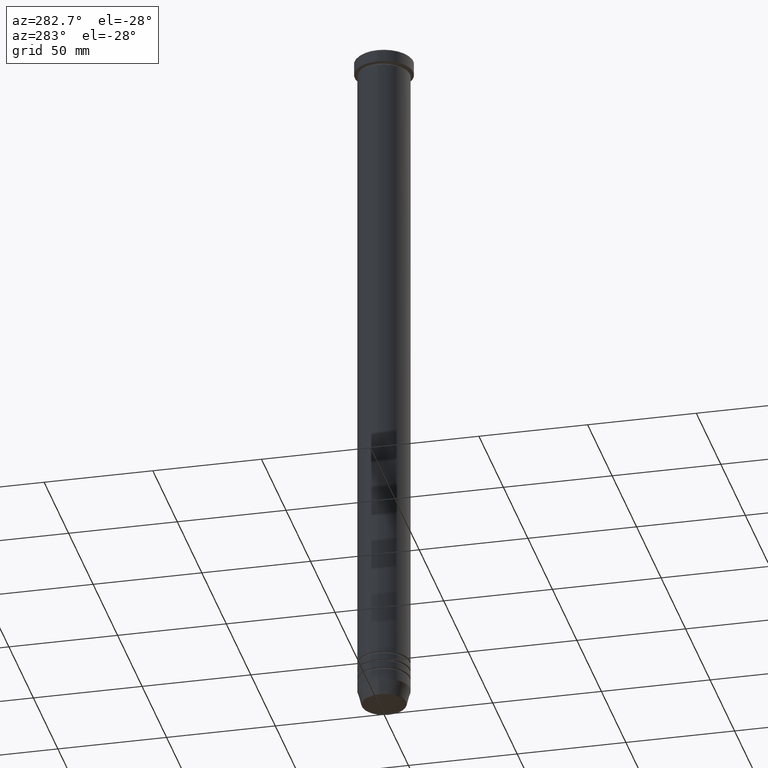
[diagram: clean part render]
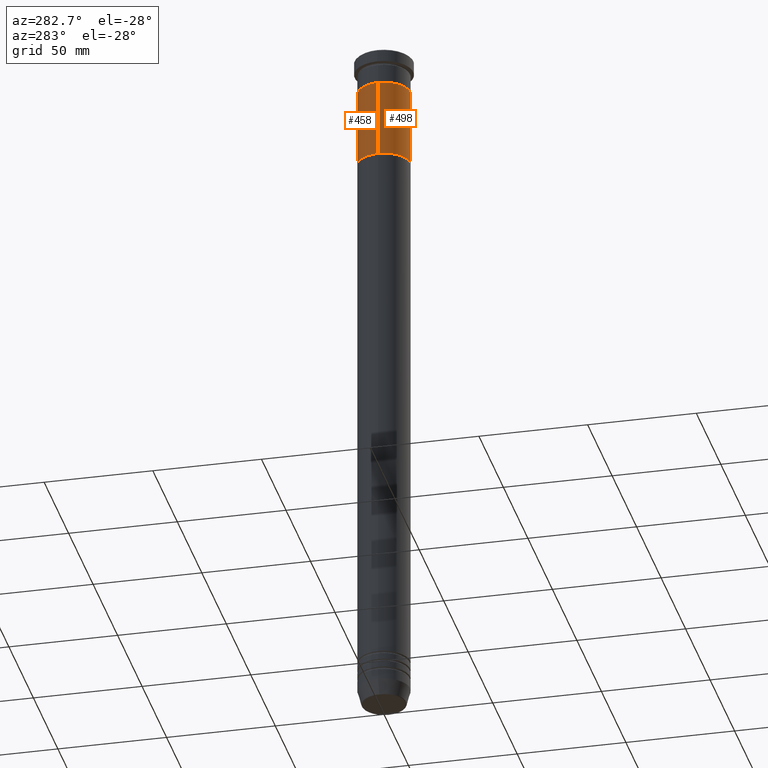
[diagram: same view with one multi-face feature highlighted, each face labeled with its STEP entity id]
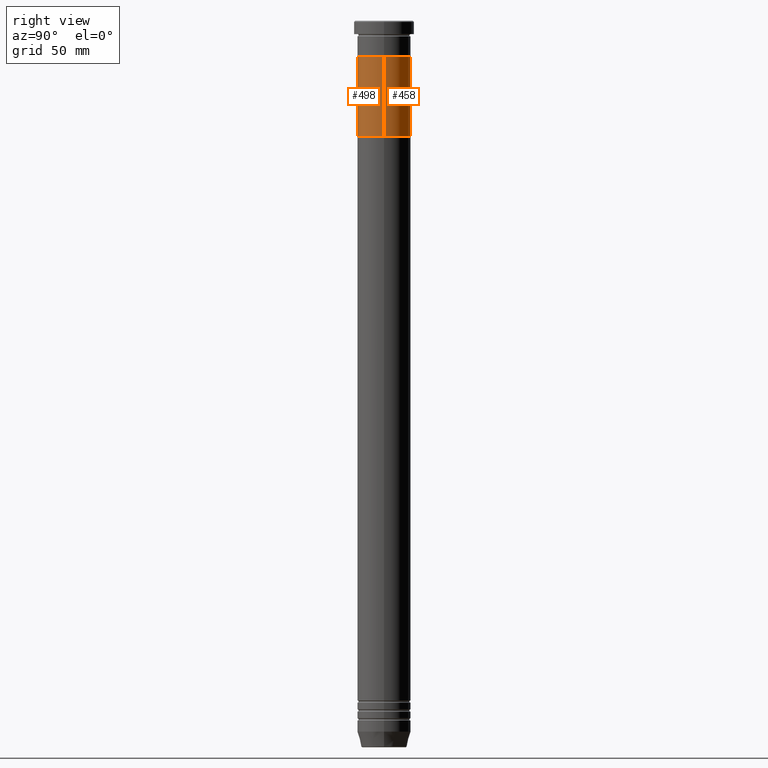
[diagram: same view with one multi-face feature highlighted, each face labeled with its STEP entity id]
A machine part, auxiliary view. The highlighted faces form ONE feature: a constant-radius fillet chain: 2 tangent blend faces with common blend radius 12 mm. The faces share edges in the B-rep.
A second angle (right view) of the same feature is appended — it is thin or edge-on in the first view.
Their STEP definitions:
[1] entity #498 (Cylinder):
#7 = CARTESIAN_POINT ( 'NONE',  ( -12.00000000000000178, 1.469576158976824144E-15, -52.00000000000000000 ) ) ;
#70 = EDGE_LOOP ( 'NONE', ( #624, #855, #788, #665 ) ) ;
#120 = DIRECTION ( 'NONE',  ( -0.000000000000000000, -0.000000000000000000, 1.000000000000000000 ) ) ;
#226 = CARTESIAN_POINT ( 'NONE',  ( -12.00000000000000178, 1.469576158976824144E-15, -52.00000000000000000 ) ) ;
#228 = VERTEX_POINT ( 'NONE', #7 ) ;
#235 = VERTEX_POINT ( 'NONE', #731 ) ;
#268 = VECTOR ( 'NONE', #674, 1000.000000000000000 ) ;
#317 = LINE ( 'NONE', #478, #268 ) ;
#332 = EDGE_CURVE ( 'NONE', #235, #1041, #795, .T. ) ;
#380 = DIRECTION ( 'NONE',  ( 0.000000000000000000, 0.000000000000000000, -1.000000000000000000 ) ) ;
#386 = EDGE_CURVE ( 'NONE', #431, #235, #317, .T. ) ;
#431 = VERTEX_POINT ( 'NONE', #667 ) ;
#450 = FACE_OUTER_BOUND ( 'NONE', #70, .T. ) ;
#478 = CARTESIAN_POINT ( 'NONE',  ( 12.00000000000000178, 0.000000000000000000, -52.00000000000000000 ) ) ;
#498 = ADVANCED_FACE ( 'NONE', ( #450 ), #1088, .T. ) ;
#547 = DIRECTION ( 'NONE',  ( 0.000000000000000000, 0.000000000000000000, -1.000000000000000000 ) ) ;
#590 = DIRECTION ( 'NONE',  ( -0.000000000000000000, -0.000000000000000000, 1.000000000000000000 ) ) ;
#624 = ORIENTED_EDGE ( 'NONE', *, *, #954, .F. ) ;
#644 = DIRECTION ( 'NONE',  ( -1.000000000000000000, 0.000000000000000000, 0.000000000000000000 ) ) ;
#657 = AXIS2_PLACEMENT_3D ( 'NONE', #1144, #120, #974 ) ;
#665 = ORIENTED_EDGE ( 'NONE', *, *, #332, .T. ) ;
#667 = CARTESIAN_POINT ( 'NONE',  ( 12.00000000000000178, 0.000000000000000000, -52.00000000000000000 ) ) ;
#669 = VECTOR ( 'NONE', #590, 1000.000000000000000 ) ;
#673 = LINE ( 'NONE', #226, #669 ) ;
#674 = DIRECTION ( 'NONE',  ( -0.000000000000000000, -0.000000000000000000, 1.000000000000000000 ) ) ;
#731 = CARTESIAN_POINT ( 'NONE',  ( 12.00000000000000178, 0.000000000000000000, -16.00000000000000000 ) ) ;
#738 = DIRECTION ( 'NONE',  ( -1.000000000000000000, 0.000000000000000000, 0.000000000000000000 ) ) ;
#771 = CARTESIAN_POINT ( 'NONE',  ( -12.00000000000000178, 1.469576158976824144E-15, -16.00000000000000000 ) ) ;
#788 = ORIENTED_EDGE ( 'NONE', *, *, #386, .T. ) ;
#795 = CIRCLE ( 'NONE', #1073, 12.00000000000000178 ) ;
#855 = ORIENTED_EDGE ( 'NONE', *, *, #891, .F. ) ;
#874 = CARTESIAN_POINT ( 'NONE',  ( 0.000000000000000000, 0.000000000000000000, -16.00000000000000000 ) ) ;
#891 = EDGE_CURVE ( 'NONE', #431, #228, #982, .T. ) ;
#900 = CARTESIAN_POINT ( 'NONE',  ( 0.000000000000000000, 0.000000000000000000, -52.00000000000000000 ) ) ;
#954 = EDGE_CURVE ( 'NONE', #228, #1041, #673, .T. ) ;
#974 = DIRECTION ( 'NONE',  ( 1.000000000000000000, 0.000000000000000000, 0.000000000000000000 ) ) ;
#982 = CIRCLE ( 'NONE', #1054, 12.00000000000000178 ) ;
#1041 = VERTEX_POINT ( 'NONE', #771 ) ;
#1054 = AXIS2_PLACEMENT_3D ( 'NONE', #900, #380, #738 ) ;
#1073 = AXIS2_PLACEMENT_3D ( 'NONE', #874, #547, #644 ) ;
#1088 = CYLINDRICAL_SURFACE ( 'NONE', #657, 12.00000000000000178 ) ;
#1144 = CARTESIAN_POINT ( 'NONE',  ( 0.000000000000000000, 0.000000000000000000, -52.00000000000000000 ) ) ;
[2] entity #458 (Cylinder):
#7 = CARTESIAN_POINT ( 'NONE',  ( -12.00000000000000178, 1.469576158976824144E-15, -52.00000000000000000 ) ) ;
#60 = EDGE_CURVE ( 'NONE', #228, #431, #561, .T. ) ;
#69 = DIRECTION ( 'NONE',  ( -1.000000000000000000, 0.000000000000000000, 0.000000000000000000 ) ) ;
#127 = ORIENTED_EDGE ( 'NONE', *, *, #716, .T. ) ;
#135 = CARTESIAN_POINT ( 'NONE',  ( 0.000000000000000000, 0.000000000000000000, -52.00000000000000000 ) ) ;
#202 = AXIS2_PLACEMENT_3D ( 'NONE', #135, #899, #321 ) ;
#209 = ORIENTED_EDGE ( 'NONE', *, *, #954, .T. ) ;
#226 = CARTESIAN_POINT ( 'NONE',  ( -12.00000000000000178, 1.469576158976824144E-15, -52.00000000000000000 ) ) ;
#228 = VERTEX_POINT ( 'NONE', #7 ) ;
#235 = VERTEX_POINT ( 'NONE', #731 ) ;
#268 = VECTOR ( 'NONE', #674, 1000.000000000000000 ) ;
#277 = CARTESIAN_POINT ( 'NONE',  ( 0.000000000000000000, 0.000000000000000000, -52.00000000000000000 ) ) ;
#317 = LINE ( 'NONE', #478, #268 ) ;
#321 = DIRECTION ( 'NONE',  ( 1.000000000000000000, 0.000000000000000000, 0.000000000000000000 ) ) ;
#386 = EDGE_CURVE ( 'NONE', #431, #235, #317, .T. ) ;
#431 = VERTEX_POINT ( 'NONE', #667 ) ;
#449 = ORIENTED_EDGE ( 'NONE', *, *, #60, .F. ) ;
#458 = ADVANCED_FACE ( 'NONE', ( #589 ), #663, .T. ) ;
#478 = CARTESIAN_POINT ( 'NONE',  ( 12.00000000000000178, 0.000000000000000000, -52.00000000000000000 ) ) ;
#533 = EDGE_LOOP ( 'NONE', ( #449, #209, #127, #951 ) ) ;
#538 = AXIS2_PLACEMENT_3D ( 'NONE', #277, #1077, #646 ) ;
#561 = CIRCLE ( 'NONE', #538, 12.00000000000000178 ) ;
#589 = FACE_OUTER_BOUND ( 'NONE', #533, .T. ) ;
#590 = DIRECTION ( 'NONE',  ( -0.000000000000000000, -0.000000000000000000, 1.000000000000000000 ) ) ;
#596 = CIRCLE ( 'NONE', #681, 12.00000000000000178 ) ;
#646 = DIRECTION ( 'NONE',  ( -1.000000000000000000, 0.000000000000000000, 0.000000000000000000 ) ) ;
#663 = CYLINDRICAL_SURFACE ( 'NONE', #202, 12.00000000000000178 ) ;
#667 = CARTESIAN_POINT ( 'NONE',  ( 12.00000000000000178, 0.000000000000000000, -52.00000000000000000 ) ) ;
#669 = VECTOR ( 'NONE', #590, 1000.000000000000000 ) ;
#673 = LINE ( 'NONE', #226, #669 ) ;
#674 = DIRECTION ( 'NONE',  ( -0.000000000000000000, -0.000000000000000000, 1.000000000000000000 ) ) ;
#681 = AXIS2_PLACEMENT_3D ( 'NONE', #860, #717, #69 ) ;
#716 = EDGE_CURVE ( 'NONE', #1041, #235, #596, .T. ) ;
#717 = DIRECTION ( 'NONE',  ( 0.000000000000000000, 0.000000000000000000, -1.000000000000000000 ) ) ;
#731 = CARTESIAN_POINT ( 'NONE',  ( 12.00000000000000178, 0.000000000000000000, -16.00000000000000000 ) ) ;
#771 = CARTESIAN_POINT ( 'NONE',  ( -12.00000000000000178, 1.469576158976824144E-15, -16.00000000000000000 ) ) ;
#860 = CARTESIAN_POINT ( 'NONE',  ( 0.000000000000000000, 0.000000000000000000, -16.00000000000000000 ) ) ;
#899 = DIRECTION ( 'NONE',  ( -0.000000000000000000, -0.000000000000000000, 1.000000000000000000 ) ) ;
#951 = ORIENTED_EDGE ( 'NONE', *, *, #386, .F. ) ;
#954 = EDGE_CURVE ( 'NONE', #228, #1041, #673, .T. ) ;
#1041 = VERTEX_POINT ( 'NONE', #771 ) ;
#1077 = DIRECTION ( 'NONE',  ( 0.000000000000000000, 0.000000000000000000, -1.000000000000000000 ) ) ;